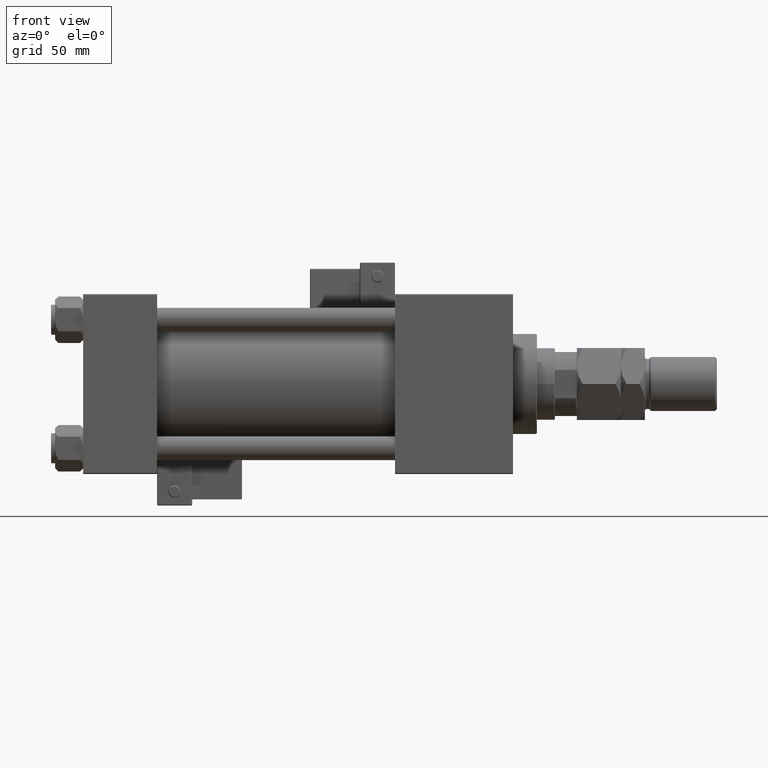
[diagram: clean part render]
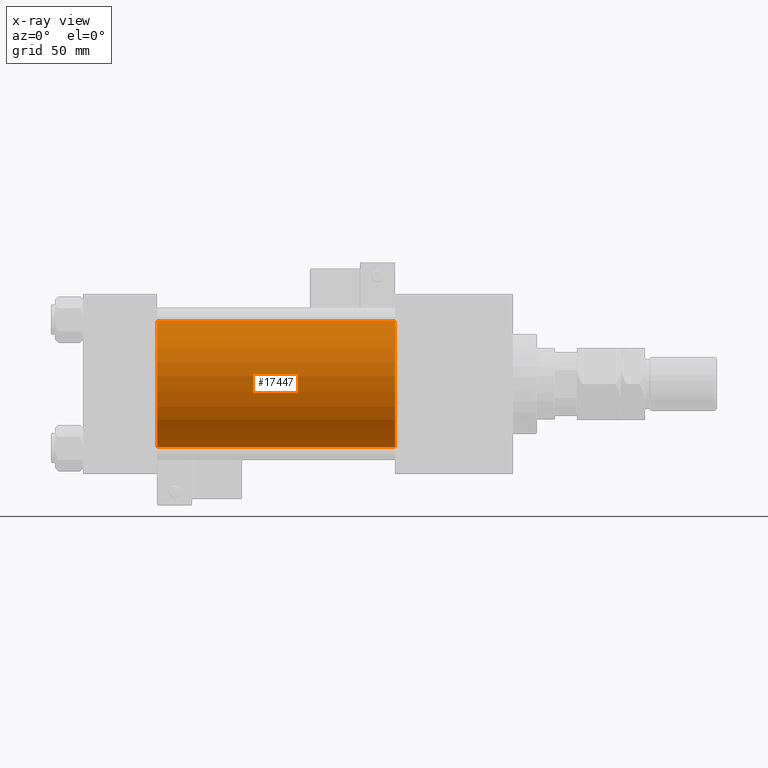
[diagram: x-ray — body ghosted, one internal face saturated and labeled with its STEP entity id]
A machine part, front view, then the same camera in x-ray: the body is ghosted and one INTERNAL B-rep face — a face not visible from any outside direction — is saturated and labeled: STEP entity #17447.
In plain terms, the highlighted cylindrical surface (partial cylindrical patch) has radius 31.5 mm, axis along (-1, -0, -0).
Its self-contained STEP definition (entity closure, byte-faithful):
#1320 = DIRECTION ( 'NONE',  ( 0.000000000000000000, 0.000000000000000000, -1.000000000000000000 ) ) ;
#1572 = CIRCLE ( 'NONE', #32161, 31.50000000000000000 ) ;
#1863 = VERTEX_POINT ( 'NONE', #27379 ) ;
#4529 = AXIS2_PLACEMENT_3D ( 'NONE', #10985, #10723, #9906 ) ;
#4618 = DIRECTION ( 'NONE',  ( 1.000000000000000000, 0.000000000000000000, 0.000000000000000000 ) ) ;
#8181 = DIRECTION ( 'NONE',  ( -1.000000000000000000, -0.000000000000000000, -0.000000000000000000 ) ) ;
#9906 = DIRECTION ( 'NONE',  ( 0.000000000000000000, 0.000000000000000000, -1.000000000000000000 ) ) ;
#10644 = CIRCLE ( 'NONE', #4529, 31.50000000000000000 ) ;
#10692 = CARTESIAN_POINT ( 'NONE',  ( 156.0000000000000000, 1.255552203348951850E-15, -31.50000000000000000 ) ) ;
#10723 = DIRECTION ( 'NONE',  ( 1.000000000000000000, 0.000000000000000000, 0.000000000000000000 ) ) ;
#10985 = CARTESIAN_POINT ( 'NONE',  ( 156.0000000000000000, -2.602085213965210642E-15, 0.000000000000000000 ) ) ;
#11812 = DIRECTION ( 'NONE',  ( -1.000000000000000000, -0.000000000000000000, -0.000000000000000000 ) ) ;
#12818 = CARTESIAN_POINT ( 'NONE',  ( 156.0000000000000000, -2.602085213965210642E-15, 0.000000000000000000 ) ) ;
#17447 = ADVANCED_FACE ( 'NONE', ( #45617 ), #21032, .F. ) ;
#18531 = VECTOR ( 'NONE', #11812, 1000.000000000000000 ) ;
#21032 = CYLINDRICAL_SURFACE ( 'NONE', #52967, 31.50000000000000000 ) ;
#21315 = EDGE_CURVE ( 'NONE', #30280, #52915, #1572, .T. ) ;
#22798 = CARTESIAN_POINT ( 'NONE',  ( 156.0000000000000000, 1.255552203348951850E-15, -31.50000000000000000 ) ) ;
#27308 = ORIENTED_EDGE ( 'NONE', *, *, #46954, .T. ) ;
#27379 = CARTESIAN_POINT ( 'NONE',  ( 156.0000000000000000, -2.602085213965210642E-15, 31.50000000000000000 ) ) ;
#30280 = VERTEX_POINT ( 'NONE', #36254 ) ;
#32161 = AXIS2_PLACEMENT_3D ( 'NONE', #42075, #4618, #1320 ) ;
#32601 = CARTESIAN_POINT ( 'NONE',  ( 156.0000000000000000, -2.602085213965210642E-15, 31.50000000000000000 ) ) ;
#32835 = EDGE_CURVE ( 'NONE', #1863, #30280, #49237, .T. ) ;
#33811 = VERTEX_POINT ( 'NONE', #22798 ) ;
#36254 = CARTESIAN_POINT ( 'NONE',  ( 37.00000000000000000, -2.602085213965210642E-15, 31.50000000000000000 ) ) ;
#39201 = ORIENTED_EDGE ( 'NONE', *, *, #50616, .T. ) ;
#39260 = VECTOR ( 'NONE', #53755, 1000.000000000000000 ) ;
#41207 = LINE ( 'NONE', #10692, #39260 ) ;
#42075 = CARTESIAN_POINT ( 'NONE',  ( 37.00000000000000000, -2.602085213965210642E-15, 0.000000000000000000 ) ) ;
#42979 = CARTESIAN_POINT ( 'NONE',  ( 37.00000000000000000, 1.255552203348951850E-15, -31.50000000000000000 ) ) ;
#44848 = EDGE_LOOP ( 'NONE', ( #39201, #27308, #48582, #52715 ) ) ;
#45617 = FACE_OUTER_BOUND ( 'NONE', #44848, .T. ) ;
#46954 = EDGE_CURVE ( 'NONE', #33811, #52915, #41207, .T. ) ;
#48582 = ORIENTED_EDGE ( 'NONE', *, *, #21315, .F. ) ;
#49237 = LINE ( 'NONE', #32601, #18531 ) ;
#50616 = EDGE_CURVE ( 'NONE', #1863, #33811, #10644, .T. ) ;
#52715 = ORIENTED_EDGE ( 'NONE', *, *, #32835, .F. ) ;
#52915 = VERTEX_POINT ( 'NONE', #42979 ) ;
#52967 = AXIS2_PLACEMENT_3D ( 'NONE', #12818, #8181, #54080 ) ;
#53755 = DIRECTION ( 'NONE',  ( -1.000000000000000000, -0.000000000000000000, -0.000000000000000000 ) ) ;
#54080 = DIRECTION ( 'NONE',  ( 0.000000000000000000, 0.000000000000000000, 1.000000000000000000 ) ) ;